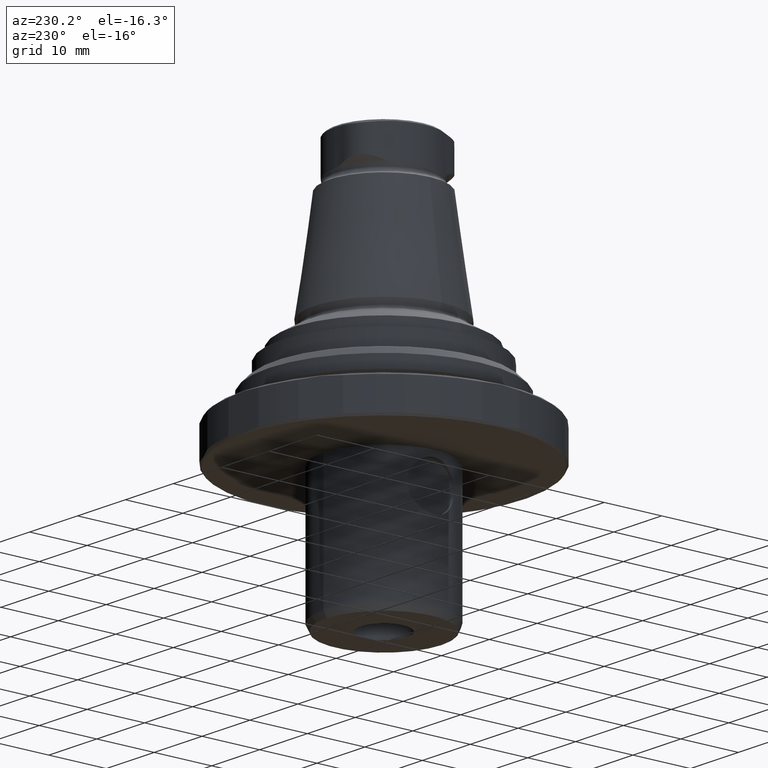
[diagram: clean part render]
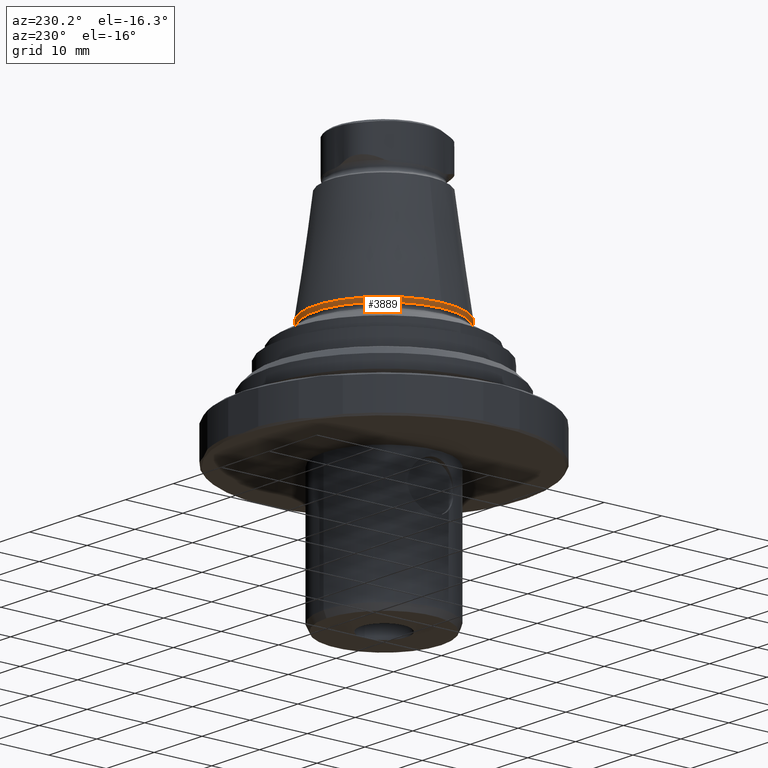
[diagram: same view with one face highlighted and labeled with its STEP entity id]
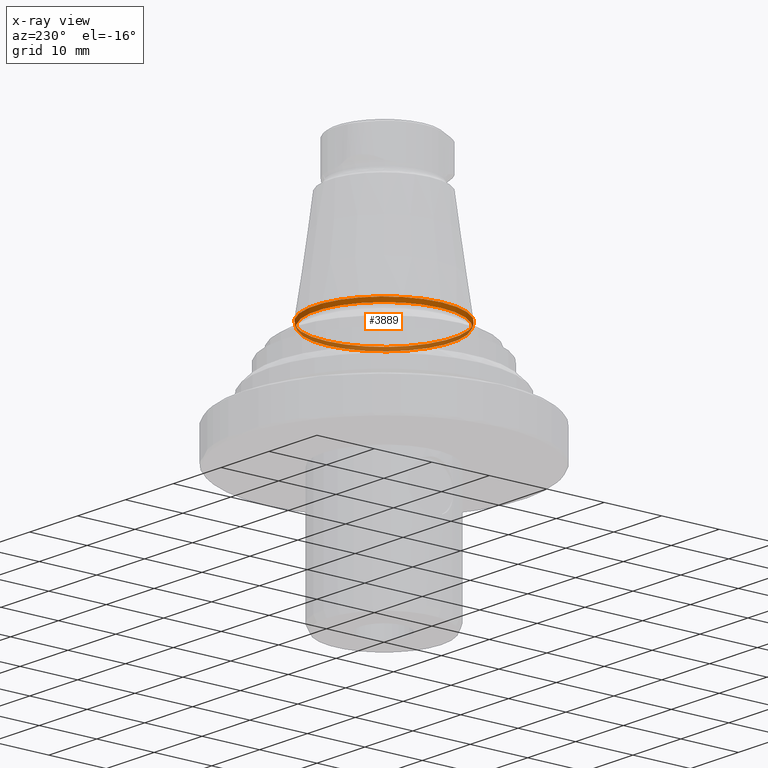
[diagram: x-ray of the same camera — body ghosted, the highlighted face saturated]
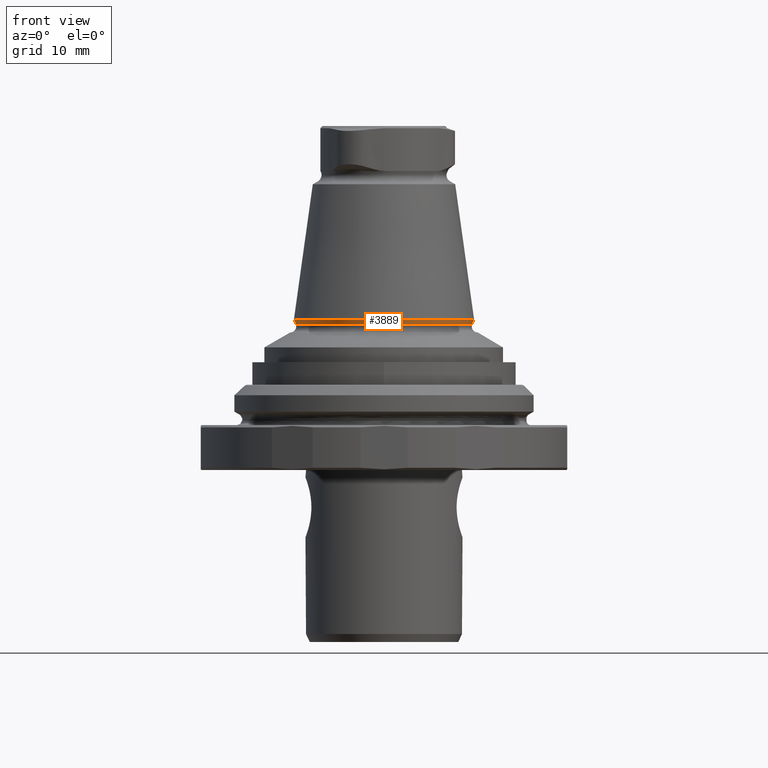
[diagram: same view with one face highlighted and labeled with its STEP entity id]
A machine part, auxiliary view. The second image highlights one B-rep face of the part: STEP entity #3889.
The next image is the same camera in x-ray: the body ghosted, the highlighted face saturated — about 42% of this face is hidden behind the body in this view.
A second angle (front view) of the same face is appended — the face is thin or edge-on in the first view.
In plain terms, the highlighted conical surface has half-angle 20 deg.
Its self-contained STEP definition (entity closure, byte-faithful):
#3780 = CONICAL_SURFACE('',#3781,12.038904202896,0.138753675534);
#3781 = AXIS2_PLACEMENT_3D('',#3782,#3783,#3784);
#3782 = CARTESIAN_POINT('',(2.888894916581E-031,-9.089951014118E-016,
    13.169813232618));
#3783 = DIRECTION('',(0.E+000,0.E+000,-1.));
#3784 = DIRECTION('',(-1.,3.347474207549E-017,0.E+000));
#3797 = VERTEX_POINT('',#3798);
#3798 = CARTESIAN_POINT('',(-12.03890420289,-5.059958883484E-016,
    13.169813232618));
#3818 = EDGE_CURVE('',#3797,#3797,#3819,.T.);
#3819 = SURFACE_CURVE('',#3820,(#3825,#3854),.PCURVE_S1.);
#3820 = CIRCLE('',#3821,12.038904202896);
#3821 = AXIS2_PLACEMENT_3D('',#3822,#3823,#3824);
#3822 = CARTESIAN_POINT('',(2.888894916581E-031,-9.089951014118E-016,
    13.169813232618));
#3823 = DIRECTION('',(0.E+000,0.E+000,-1.));
#3824 = DIRECTION('',(-1.,3.347474207549E-017,0.E+000));
#3825 = PCURVE('',#3780,#3826);
#3826 = DEFINITIONAL_REPRESENTATION('',(#3827),#3853);
#3827 = B_SPLINE_CURVE_WITH_KNOTS('',3,(#3828,#3829,#3830,#3831,#3832,
    #3833,#3834,#3835,#3836,#3837,#3838,#3839,#3840,#3841,#3842,#3843,
    #3844,#3845,#3846,#3847,#3848,#3849,#3850,#3851,#3852),
  .UNSPECIFIED.,.F.,.F.,(4,1,1,1,1,1,1,1,1,1,1,1,1,1,1,1,1,1,1,1,1,1,4),
  (0.E+000,0.285599332145,0.571198664289,0.856797996434,1.142397328578,
    1.427996660723,1.713595992867,1.999195325012,2.284794657156,
    2.570393989301,2.855993321445,3.14159265359,3.427191985734,
    3.712791317879,3.998390650023,4.283989982168,4.569589314312,
    4.855188646457,5.140787978601,5.426387310746,5.711986642891,
    5.997585975035,6.28318530718),.QUASI_UNIFORM_KNOTS.);
#3828 = CARTESIAN_POINT('',(0.E+000,0.E+000));
#3829 = CARTESIAN_POINT('',(9.519977738151E-002,-3.649869988808E-016));
#3830 = CARTESIAN_POINT('',(0.285599332145,-4.039174917071E-016));
#3831 = CARTESIAN_POINT('',(0.571198664289,5.012437237728E-016));
#3832 = CARTESIAN_POINT('',(0.856797996434,-1.411094078608E-016));
#3833 = CARTESIAN_POINT('',(1.142397328578,6.319390767042E-017));
#3834 = CARTESIAN_POINT('',(1.427996660723,-1.116662228209E-016));
#3835 = CARTESIAN_POINT('',(1.713595992867,3.834709836131E-016));
#3836 = CARTESIAN_POINT('',(1.999195325012,3.773028389172E-017));
#3837 = CARTESIAN_POINT('',(2.284794657156,-5.3439211918E-016));
#3838 = CARTESIAN_POINT('',(2.570393989301,6.39890197305E-016));
#3839 = CARTESIAN_POINT('',(2.855993321445,-5.652206745168E-016));
#3840 = CARTESIAN_POINT('',(3.14159265359,1.61044505239E-016));
#3841 = CARTESIAN_POINT('',(3.427191985734,-7.895734643937E-017));
#3842 = CARTESIAN_POINT('',(3.712791317879,1.547848805184E-016));
#3843 = CARTESIAN_POINT('',(3.998390650023,-5.401821756344E-016));
#3844 = CARTESIAN_POINT('',(4.283989982168,5.459958264959E-016));
#3845 = CARTESIAN_POINT('',(4.569589314312,-1.838531348261E-016));
#3846 = CARTESIAN_POINT('',(4.855188646457,1.894167128084E-016));
#3847 = CARTESIAN_POINT('',(5.140787978601,-5.738137164077E-016));
#3848 = CARTESIAN_POINT('',(5.426387310746,6.458901572991E-016));
#3849 = CARTESIAN_POINT('',(5.711986642891,-5.497989172654E-016));
#3850 = CARTESIAN_POINT('',(5.997585975035,9.335751623951E-017));
#3851 = CARTESIAN_POINT('',(6.187985529798,1.486984069514E-016));
#3852 = CARTESIAN_POINT('',(6.28318530718,0.E+000));
#3853 = ( GEOMETRIC_REPRESENTATION_CONTEXT(2) 
PARAMETRIC_REPRESENTATION_CONTEXT() REPRESENTATION_CONTEXT('2D SPACE',''
  ) );
#3854 = PCURVE('',#3855,#3860);
#3855 = CONICAL_SURFACE('',#3856,11.783245903371,0.349065850399);
#3856 = AXIS2_PLACEMENT_3D('',#3857,#3858,#3859);
#3857 = CARTESIAN_POINT('',(2.888894916581E-031,-9.089951014118E-016,
    12.467397827577));
#3858 = DIRECTION('',(0.E+000,0.E+000,1.));
#3859 = DIRECTION('',(1.,-3.347474207549E-017,0.E+000));
#3860 = DEFINITIONAL_REPRESENTATION('',(#3861),#3887);
#3861 = B_SPLINE_CURVE_WITH_KNOTS('',3,(#3862,#3863,#3864,#3865,#3866,
    #3867,#3868,#3869,#3870,#3871,#3872,#3873,#3874,#3875,#3876,#3877,
    #3878,#3879,#3880,#3881,#3882,#3883,#3884,#3885,#3886),
  .UNSPECIFIED.,.F.,.F.,(4,1,1,1,1,1,1,1,1,1,1,1,1,1,1,1,1,1,1,1,1,1,4),
  (0.E+000,0.285599332145,0.571198664289,0.856797996434,1.142397328578,
    1.427996660723,1.713595992867,1.999195325012,2.284794657156,
    2.570393989301,2.855993321445,3.14159265359,3.427191985734,
    3.712791317879,3.998390650023,4.283989982168,4.569589314312,
    4.855188646457,5.140787978601,5.426387310746,5.711986642891,
    5.997585975035,6.28318530718),.QUASI_UNIFORM_KNOTS.);
#3862 = CARTESIAN_POINT('',(9.424777960769,0.702415405041));
#3863 = CARTESIAN_POINT('',(9.329578183388,0.702415405041));
#3864 = CARTESIAN_POINT('',(9.139178628625,0.702415405041));
#3865 = CARTESIAN_POINT('',(8.85357929648,0.702415405041));
#3866 = CARTESIAN_POINT('',(8.567979964336,0.702415405041));
#3867 = CARTESIAN_POINT('',(8.282380632191,0.702415405041));
#3868 = CARTESIAN_POINT('',(7.996781300047,0.702415405041));
#3869 = CARTESIAN_POINT('',(7.711181967902,0.702415405041));
#3870 = CARTESIAN_POINT('',(7.425582635758,0.702415405041));
#3871 = CARTESIAN_POINT('',(7.139983303613,0.702415405041));
#3872 = CARTESIAN_POINT('',(6.854383971469,0.702415405041));
#3873 = CARTESIAN_POINT('',(6.568784639324,0.702415405041));
#3874 = CARTESIAN_POINT('',(6.28318530718,0.702415405041));
#3875 = CARTESIAN_POINT('',(5.997585975035,0.702415405041));
#3876 = CARTESIAN_POINT('',(5.711986642891,0.702415405041));
#3877 = CARTESIAN_POINT('',(5.426387310746,0.702415405041));
#3878 = CARTESIAN_POINT('',(5.140787978601,0.702415405041));
#3879 = CARTESIAN_POINT('',(4.855188646457,0.702415405041));
#3880 = CARTESIAN_POINT('',(4.569589314312,0.702415405041));
#3881 = CARTESIAN_POINT('',(4.283989982168,0.702415405041));
#3882 = CARTESIAN_POINT('',(3.998390650023,0.702415405041));
#3883 = CARTESIAN_POINT('',(3.712791317879,0.702415405041));
#3884 = CARTESIAN_POINT('',(3.427191985734,0.702415405041));
#3885 = CARTESIAN_POINT('',(3.236792430971,0.702415405041));
#3886 = CARTESIAN_POINT('',(3.14159265359,0.702415405041));
#3887 = ( GEOMETRIC_REPRESENTATION_CONTEXT(2) 
PARAMETRIC_REPRESENTATION_CONTEXT() REPRESENTATION_CONTEXT('2D SPACE',''
  ) );
#3889 = ADVANCED_FACE('',(#3890),#3855,.T.);
#3890 = FACE_BOUND('',#3891,.T.);
#3891 = EDGE_LOOP('',(#3892,#3893,#3915,#3986));
#3892 = ORIENTED_EDGE('',*,*,#3818,.T.);
#3893 = ORIENTED_EDGE('',*,*,#3894,.F.);
#3894 = EDGE_CURVE('',#3895,#3797,#3897,.T.);
#3895 = VERTEX_POINT('',#3896);
#3896 = CARTESIAN_POINT('',(-11.78324590337,-5.145539839844E-016,
    12.467397827577));
#3897 = SEAM_CURVE('',#3898,(#3901,#3908),.PCURVE_S1.);
#3898 = B_SPLINE_CURVE_WITH_KNOTS('',1,(#3899,#3900),.UNSPECIFIED.,.F.,
  .F.,(2,2),(-1.982019198333E-033,0.747494861089),
  .PIECEWISE_BEZIER_KNOTS.);
#3899 = CARTESIAN_POINT('',(-11.78324590337,3.814540329755E-015,
    12.467397827577));
#3900 = CARTESIAN_POINT('',(-12.03890420289,3.917025760847E-015,
    13.169813232618));
#3901 = PCURVE('',#3855,#3902);
#3902 = DEFINITIONAL_REPRESENTATION('',(#3903),#3907);
#3903 = LINE('',#3904,#3905);
#3904 = CARTESIAN_POINT('',(3.14159265359,0.E+000));
#3905 = VECTOR('',#3906,1.);
#3906 = DIRECTION('',(0.E+000,1.));
#3907 = ( GEOMETRIC_REPRESENTATION_CONTEXT(2) 
PARAMETRIC_REPRESENTATION_CONTEXT() REPRESENTATION_CONTEXT('2D SPACE',''
  ) );
#3908 = PCURVE('',#3855,#3909);
#3909 = DEFINITIONAL_REPRESENTATION('',(#3910),#3914);
#3910 = LINE('',#3911,#3912);
#3911 = CARTESIAN_POINT('',(9.424777960769,0.E+000));
#3912 = VECTOR('',#3913,1.);
#3913 = DIRECTION('',(0.E+000,1.));
#3914 = ( GEOMETRIC_REPRESENTATION_CONTEXT(2) 
PARAMETRIC_REPRESENTATION_CONTEXT() REPRESENTATION_CONTEXT('2D SPACE',''
  ) );
#3915 = ORIENTED_EDGE('',*,*,#3916,.F.);
#3916 = EDGE_CURVE('',#3895,#3895,#3917,.T.);
#3917 = SURFACE_CURVE('',#3918,(#3923,#3952),.PCURVE_S1.);
#3918 = CIRCLE('',#3919,11.783245903371);
#3919 = AXIS2_PLACEMENT_3D('',#3920,#3921,#3922);
#3920 = CARTESIAN_POINT('',(2.888894916581E-031,-9.089951014118E-016,
    12.467397827577));
#3921 = DIRECTION('',(0.E+000,0.E+000,-1.));
#3922 = DIRECTION('',(-1.,3.347474207549E-017,0.E+000));
#3923 = PCURVE('',#3855,#3924);
#3924 = DEFINITIONAL_REPRESENTATION('',(#3925),#3951);
#3925 = B_SPLINE_CURVE_WITH_KNOTS('',3,(#3926,#3927,#3928,#3929,#3930,
    #3931,#3932,#3933,#3934,#3935,#3936,#3937,#3938,#3939,#3940,#3941,
    #3942,#3943,#3944,#3945,#3946,#3947,#3948,#3949,#3950),
  .UNSPECIFIED.,.F.,.F.,(4,1,1,1,1,1,1,1,1,1,1,1,1,1,1,1,1,1,1,1,1,1,4),
  (0.E+000,0.285599332145,0.571198664289,0.856797996434,1.142397328578,
    1.427996660723,1.713595992867,1.999195325012,2.284794657156,
    2.570393989301,2.855993321445,3.14159265359,3.427191985734,
    3.712791317879,3.998390650023,4.283989982168,4.569589314312,
    4.855188646457,5.140787978601,5.426387310746,5.711986642891,
    5.997585975035,6.28318530718),.QUASI_UNIFORM_KNOTS.);
#3926 = CARTESIAN_POINT('',(9.424777960769,0.E+000));
#3927 = CARTESIAN_POINT('',(9.329578183388,-5.709100833742E-016));
#3928 = CARTESIAN_POINT('',(9.139178628625,-7.798425134638E-016));
#3929 = CARTESIAN_POINT('',(8.85357929648,1.603534219392E-016));
#3930 = CARTESIAN_POINT('',(8.567979964336,1.384288257068E-016));
#3931 = CARTESIAN_POINT('',(8.282380632191,-7.140687247664E-016));
#3932 = CARTESIAN_POINT('',(7.996781300047,-7.076144268863E-016));
#3933 = CARTESIAN_POINT('',(7.711181967902,1.190659320664E-016));
#3934 = CARTESIAN_POINT('',(7.425582635758,2.313506986209E-016));
#3935 = CARTESIAN_POINT('',(7.139983303613,-1.04446872655E-015));
#3936 = CARTESIAN_POINT('',(6.854383971469,5.210637073331E-016));
#3937 = CARTESIAN_POINT('',(6.568784639324,-1.039786102783E-015));
#3938 = CARTESIAN_POINT('',(6.28318530718,2.126202035522E-016));
#3939 = CARTESIAN_POINT('',(5.997585975035,1.893052885738E-016));
#3940 = CARTESIAN_POINT('',(5.711986642891,-9.698413578473E-016));
#3941 = CARTESIAN_POINT('',(5.426387310746,2.645996425702E-016));
#3942 = CARTESIAN_POINT('',(5.140787978601,-8.855721243359E-017));
#3943 = CARTESIAN_POINT('',(4.855188646457,8.962920716413E-017));
#3944 = CARTESIAN_POINT('',(4.569589314312,-2.699596162229E-016));
#3945 = CARTESIAN_POINT('',(4.283989982168,9.902092577277E-016));
#3946 = CARTESIAN_POINT('',(3.998390650023,-2.654169144425E-016));
#3947 = CARTESIAN_POINT('',(3.712791317879,7.14584000422E-017));
#3948 = CARTESIAN_POINT('',(3.427191985734,-2.041668572634E-017));
#3949 = CARTESIAN_POINT('',(3.236792430971,0.E+000));
#3950 = CARTESIAN_POINT('',(3.14159265359,0.E+000));
#3951 = ( GEOMETRIC_REPRESENTATION_CONTEXT(2) 
PARAMETRIC_REPRESENTATION_CONTEXT() REPRESENTATION_CONTEXT('2D SPACE',''
  ) );
#3952 = PCURVE('',#3953,#3958);
#3953 = TOROIDAL_SURFACE('',#3954,12.535,0.8);
#3954 = AXIS2_PLACEMENT_3D('',#3955,#3956,#3957);
#3955 = CARTESIAN_POINT('',(2.888894916581E-031,-9.089951014118E-016,
    12.193781712916));
#3956 = DIRECTION('',(0.E+000,0.E+000,-1.));
#3957 = DIRECTION('',(-1.,3.347474207549E-017,0.E+000));
#3958 = DEFINITIONAL_REPRESENTATION('',(#3959),#3985);
#3959 = B_SPLINE_CURVE_WITH_KNOTS('',3,(#3960,#3961,#3962,#3963,#3964,
    #3965,#3966,#3967,#3968,#3969,#3970,#3971,#3972,#3973,#3974,#3975,
    #3976,#3977,#3978,#3979,#3980,#3981,#3982,#3983,#3984),
  .UNSPECIFIED.,.F.,.F.,(4,1,1,1,1,1,1,1,1,1,1,1,1,1,1,1,1,1,1,1,1,1,4),
  (0.E+000,0.285599332145,0.571198664289,0.856797996434,1.142397328578,
    1.427996660723,1.713595992867,1.999195325012,2.284794657156,
    2.570393989301,2.855993321445,3.14159265359,3.427191985734,
    3.712791317879,3.998390650023,4.283989982168,4.569589314312,
    4.855188646457,5.140787978601,5.426387310746,5.711986642891,
    5.997585975035,6.28318530718),.QUASI_UNIFORM_KNOTS.);
#3960 = CARTESIAN_POINT('',(0.E+000,9.773843811168));
#3961 = CARTESIAN_POINT('',(9.519977738151E-002,9.773843811168));
#3962 = CARTESIAN_POINT('',(0.285599332145,9.773843811168));
#3963 = CARTESIAN_POINT('',(0.571198664289,9.773843811168));
#3964 = CARTESIAN_POINT('',(0.856797996434,9.773843811168));
#3965 = CARTESIAN_POINT('',(1.142397328578,9.773843811168));
#3966 = CARTESIAN_POINT('',(1.427996660723,9.773843811168));
#3967 = CARTESIAN_POINT('',(1.713595992867,9.773843811168));
#3968 = CARTESIAN_POINT('',(1.999195325012,9.773843811168));
#3969 = CARTESIAN_POINT('',(2.284794657156,9.773843811168));
#3970 = CARTESIAN_POINT('',(2.570393989301,9.773843811168));
#3971 = CARTESIAN_POINT('',(2.855993321445,9.773843811168));
#3972 = CARTESIAN_POINT('',(3.14159265359,9.773843811168));
#3973 = CARTESIAN_POINT('',(3.427191985734,9.773843811168));
#3974 = CARTESIAN_POINT('',(3.712791317879,9.773843811168));
#3975 = CARTESIAN_POINT('',(3.998390650023,9.773843811168));
#3976 = CARTESIAN_POINT('',(4.283989982168,9.773843811168));
#3977 = CARTESIAN_POINT('',(4.569589314312,9.773843811168));
#3978 = CARTESIAN_POINT('',(4.855188646457,9.773843811168));
#3979 = CARTESIAN_POINT('',(5.140787978601,9.773843811168));
#3980 = CARTESIAN_POINT('',(5.426387310746,9.773843811168));
#3981 = CARTESIAN_POINT('',(5.711986642891,9.773843811168));
#3982 = CARTESIAN_POINT('',(5.997585975035,9.773843811168));
#3983 = CARTESIAN_POINT('',(6.187985529798,9.773843811168));
#3984 = CARTESIAN_POINT('',(6.28318530718,9.773843811168));
#3985 = ( GEOMETRIC_REPRESENTATION_CONTEXT(2) 
PARAMETRIC_REPRESENTATION_CONTEXT() REPRESENTATION_CONTEXT('2D SPACE',''
  ) );
#3986 = ORIENTED_EDGE('',*,*,#3894,.T.);